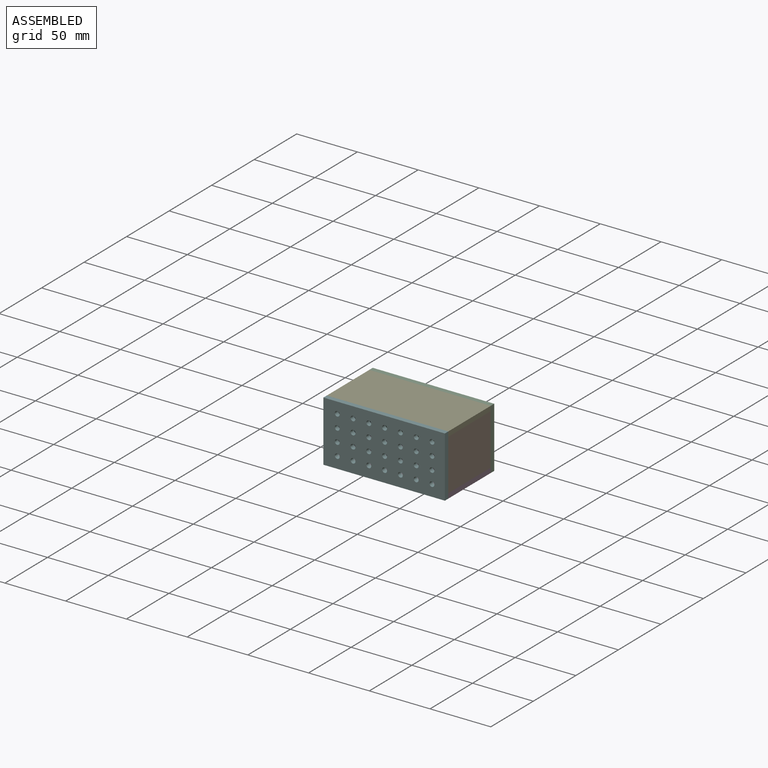
[diagram: assembled view]
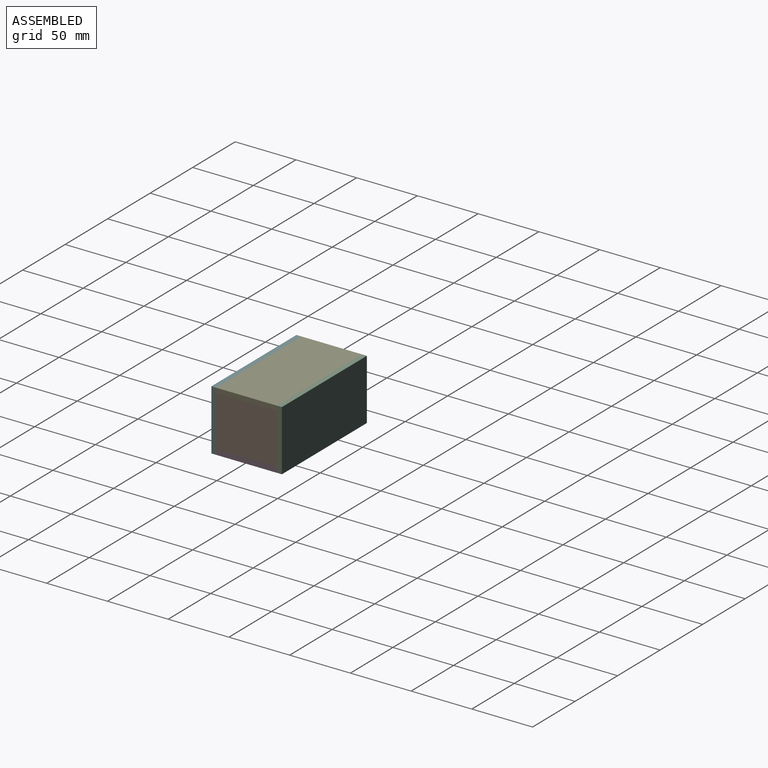
[diagram: assembled view, second angle]
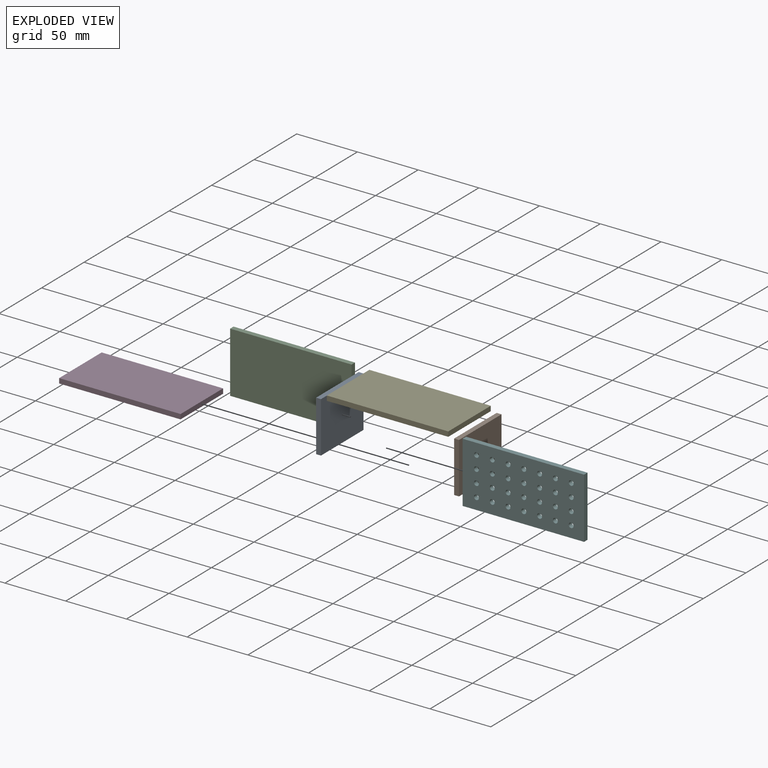
[diagram: exploded view]
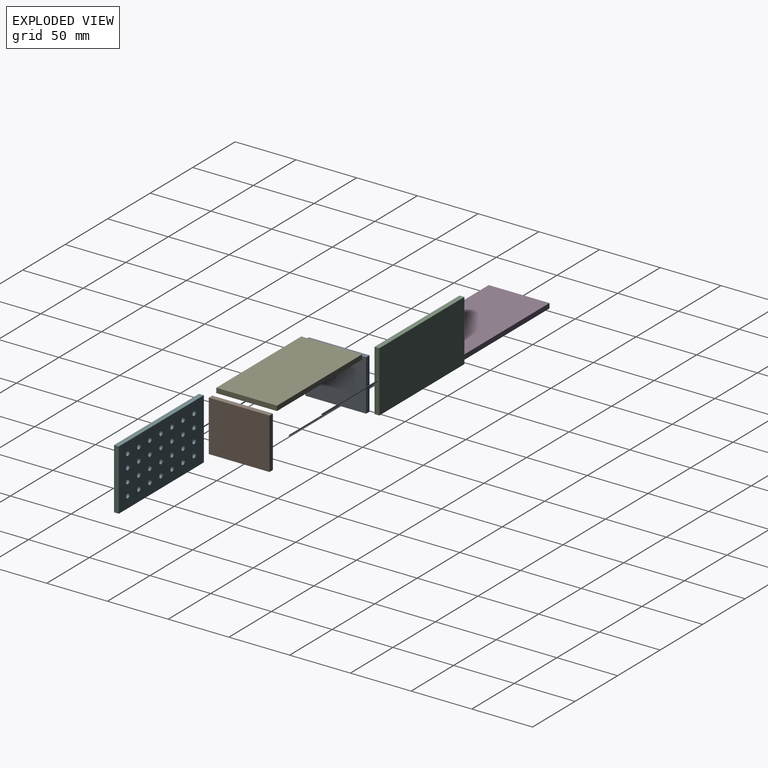
[diagram: exploded view, second angle]
ASSEMBLY  parts=6 mates=5
PART A: 6 faces, bbox 50x4x42 mm
  f0: plane 50x4mm, normal (0,0,-1), area 200mm2, adj f1,f3,f4,f5
  f1: plane 42x4mm, normal (1,0,0), area 168mm2, adj f0,f2,f4,f5
  f2: plane 50x4mm, normal (0,0,1), area 200mm2, adj f1,f3,f4,f5
  f3: plane 42x4mm, normal (-1,0,0), area 168mm2, adj f0,f2,f4,f5
  f4: plane 50x42mm, normal (0,-1,0), area 2100mm2, adj f0,f1,f2,f3
  f5: plane 50x42mm, normal (0,1,0), area 2100mm2, adj f0,f1,f2,f3
PART B: same geometry as A
PART C: 6 faces, bbox 100x4x50 mm
  f0: plane 100x4mm, normal (0,0,1), area 400mm2, adj f1,f3,f4,f5
  f1: plane 50x4mm, normal (-1,0,0), area 200mm2, adj f0,f2,f4,f5
  f2: plane 100x4mm, normal (0,0,-1), area 400mm2, adj f1,f3,f4,f5
  f3: plane 50x4mm, normal (1,0,0), area 200mm2, adj f0,f2,f4,f5
  f4: plane 100x50mm, normal (0,-1,0), area 5000mm2, adj f0,f1,f2,f3
  f5: plane 100x50mm, normal (0,1,0), area 5000mm2, adj f0,f1,f2,f3
PART D: same geometry as C
PART E: same geometry as C
PART F: 34 faces, bbox 100x4x50 mm
  f0: plane 100x4mm, normal (0,0,1), area 400mm2, adj f1,f3,f4,f5
  f1: plane 50x4mm, normal (-1,0,0), area 200mm2, adj f0,f2,f4,f5
  f2: plane 100x4mm, normal (0,0,-1), area 400mm2, adj f1,f3,f4,f5
  f3: plane 50x4mm, normal (1,0,0), area 200mm2, adj f0,f2,f4,f5
  f4: plane 100x50mm, normal (0,-1,0), area 4648.1mm2, adj f0,f1,f2,f3,f6,f7,f8,f9
  f5: plane 100x50mm, normal (0,1,0), area 4648.1mm2, adj f0,f1,f2,f3,f6,f7,f8,f9
  f6: cylinder r=2mm len=4mm, axis (0,1,0), area 50.3mm2, adj f4,f5
  f7: cylinder r=2mm len=4mm, axis (0,1,0), area 50.3mm2, adj f4,f5
  f8: cylinder r=2mm len=4mm, axis (0,1,0), area 50.3mm2, adj f4,f5
  f9: cylinder r=2mm len=4mm, axis (0,1,0), area 50.3mm2, adj f4,f5
  f10: cylinder r=2mm len=4mm, axis (0,1,0), area 50.3mm2, adj f4,f5
  f11: cylinder r=2mm len=4mm, axis (0,1,0), area 50.3mm2, adj f4,f5
  f12: cylinder r=2mm len=4mm, axis (0,1,0), area 50.3mm2, adj f4,f5
  f13: cylinder r=2mm len=4mm, axis (0,1,0), area 50.3mm2, adj f4,f5
  f14: cylinder r=2mm len=4mm, axis (0,1,0), area 50.3mm2, adj f4,f5
  f15: cylinder r=2mm len=4mm, axis (0,1,0), area 50.3mm2, adj f4,f5
  f16: cylinder r=2mm len=4mm, axis (0,1,0), area 50.3mm2, adj f4,f5
  f17: cylinder r=2mm len=4mm, axis (0,1,0), area 50.3mm2, adj f4,f5
  f18: cylinder r=2mm len=4mm, axis (0,1,0), area 50.3mm2, adj f4,f5
  f19: cylinder r=2mm len=4mm, axis (0,1,0), area 50.3mm2, adj f4,f5
  f20: cylinder r=2mm len=4mm, axis (0,1,0), area 50.3mm2, adj f4,f5
  f21: cylinder r=2mm len=4mm, axis (0,1,0), area 50.3mm2, adj f4,f5
  f22: cylinder r=2mm len=4mm, axis (0,1,0), area 50.3mm2, adj f4,f5
  f23: cylinder r=2mm len=4mm, axis (0,1,0), area 50.3mm2, adj f4,f5
  f24: cylinder r=2mm len=4mm, axis (0,1,0), area 50.3mm2, adj f4,f5
  f25: cylinder r=2mm len=4mm, axis (0,1,0), area 50.3mm2, adj f4,f5
  f26: cylinder r=2mm len=4mm, axis (0,1,0), area 50.3mm2, adj f4,f5
  f27: cylinder r=2mm len=4mm, axis (0,1,0), area 50.3mm2, adj f4,f5
  f28: cylinder r=2mm len=4mm, axis (0,1,0), area 50.3mm2, adj f4,f5
  f29: cylinder r=2mm len=4mm, axis (0,1,0), area 50.3mm2, adj f4,f5
  f30: cylinder r=2mm len=4mm, axis (0,1,0), area 50.3mm2, adj f4,f5
  f31: cylinder r=2mm len=4mm, axis (0,1,0), area 50.3mm2, adj f4,f5
  f32: cylinder r=2mm len=4mm, axis (0,1,0), area 50.3mm2, adj f4,f5
  f33: cylinder r=2mm len=4mm, axis (0,1,0), area 50.3mm2, adj f4,f5
PLACE A rot(axis=(0,0,-1),90deg) t=(-26.02,-70.04,-34.34)mm
PLACE B rot(axis=(0,0,-1),90deg) t=(69.98,-70.04,-34.34)mm
PLACE C t=(0,32.55,29.64)mm
PLACE D rot(axis=(1,0,0),90deg) t=(0,-69.32,-64.23)mm
PLACE E rot(axis=(1,0,0),90deg) t=(0,-69.32,-18.23)mm
PLACE F t=(9.2,-21.45,-39.08)mm
MATE fastened B.f5 <-> E.f3  axis (1,0,0) through (69.98,-21.45,-22.23)mm
MATE fastened E.f1 <-> A.f4  axis (-1,0,0) through (-30.02,-21.45,-22.23)mm
MATE fastened F.f1 <-> D.f1  axis (-1,0,0) through (-30.02,-21.45,-68.23)mm
MATE fastened C.f3 <-> E.f3  axis (1,0,0) through (69.98,28.55,-18.23)mm
MATE fastened A.f4 <-> D.f1  axis (-1,0,0) through (-30.02,-21.45,-64.23)mm
